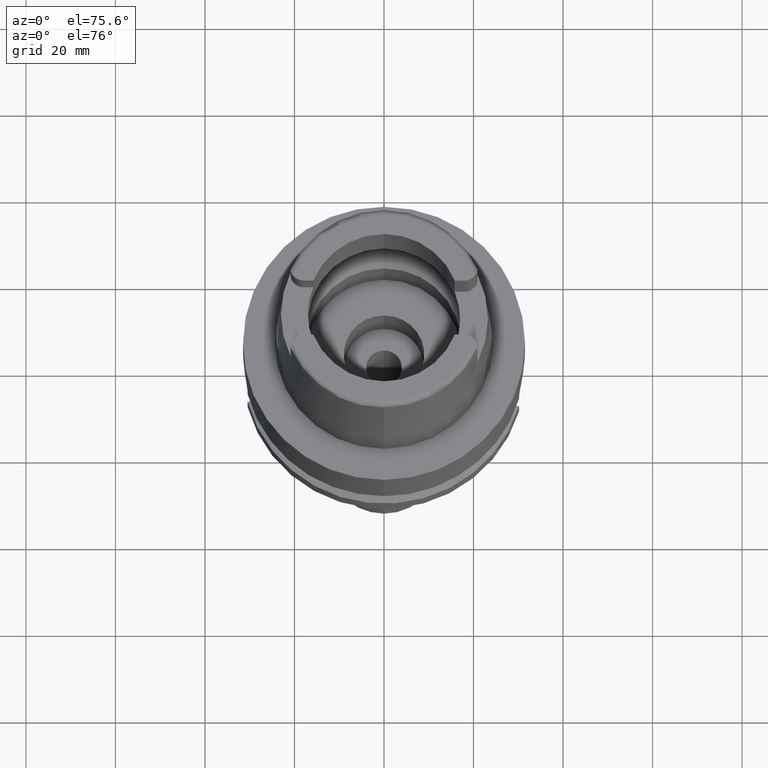
[diagram: clean part render]
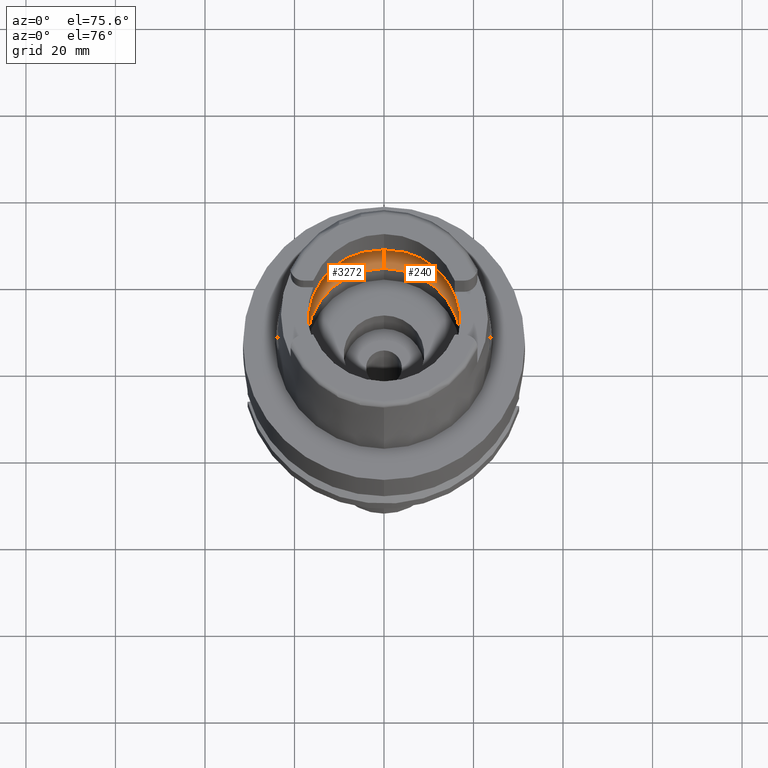
[diagram: same view with one multi-face feature highlighted, each face labeled with its STEP entity id]
A machine part, auxiliary view. The highlighted faces form ONE feature: a constant-radius fillet chain: 2 tangent blend faces with common blend radius 8 mm. The faces share edges in the B-rep.
Their STEP definitions:
[1] entity #240 (Torus):
#93 = CARTESIAN_POINT ( 'NONE',  ( 0.0000000000000000000, 12.00000000000000000, 6.186348233825000875 ) ) ;
#112 = CARTESIAN_POINT ( 'NONE',  ( 19.92547020324161622, 1.335027099705185627, 5.495682146681671654 ) ) ;
#174 = CARTESIAN_POINT ( 'NONE',  ( 19.91819973341328520, 1.528786876979105092, 5.574825955112730824 ) ) ;
#198 = VERTEX_POINT ( 'NONE', #3515 ) ;
#240 = ADVANCED_FACE ( 'NONE', ( #737 ), #5318, .F. ) ;
#241 = DIRECTION ( 'NONE',  ( 0.0000000000000000000, 1.000000000000000000, 0.0000000000000000000 ) ) ;
#401 = ORIENTED_EDGE ( 'NONE', *, *, #6070, .F. ) ;
#518 = AXIS2_PLACEMENT_3D ( 'NONE', #1895, #4679, #2704 ) ;
#542 = CARTESIAN_POINT ( 'NONE',  ( 19.94501428475999916, 0.0000000000000000000, 5.250000000000000000 ) ) ;
#608 = CARTESIAN_POINT ( 'NONE',  ( 0.0000000000000000000, 17.25000000000000000, 0.1500000000000999700 ) ) ;
#737 = FACE_OUTER_BOUND ( 'NONE', #6106, .T. ) ;
#783 = ORIENTED_EDGE ( 'NONE', *, *, #2593, .F. ) ;
#796 = CARTESIAN_POINT ( 'NONE',  ( 19.92705981527248937, -1.286926606873724177, 5.477698152406411225 ) ) ;
#813 = ORIENTED_EDGE ( 'NONE', *, *, #1099, .T. ) ;
#827 = VERTEX_POINT ( 'NONE', #3817 ) ;
#971 = EDGE_CURVE ( 'NONE', #3865, #827, #3005, .T. ) ;
#1005 = AXIS2_PLACEMENT_3D ( 'NONE', #3446, #2421, #2027 ) ;
#1011 = CARTESIAN_POINT ( 'NONE',  ( 19.92391571847977616, 1.379818936262250162, 5.513021260670475598 ) ) ;
#1099 = EDGE_CURVE ( 'NONE', #6050, #1272, #1915, .T. ) ;
#1205 = DIRECTION ( 'NONE',  ( 0.0000000000000000000, 0.0000000000000000000, 1.000000000000000000 ) ) ;
#1241 = CARTESIAN_POINT ( 'NONE',  ( 19.94501428475999916, 0.0000000000000000000, 5.250000000000000000 ) ) ;
#1271 = CARTESIAN_POINT ( 'NONE',  ( 0.0000000000000000000, 0.0000000000000000000, 6.186348233825000875 ) ) ;
#1272 = VERTEX_POINT ( 'NONE', #3110 ) ;
#1363 = CARTESIAN_POINT ( 'NONE',  ( 19.93292500493674524, -1.081634238850528451, 5.408973163817647034 ) ) ;
#1481 = CARTESIAN_POINT ( 'NONE',  ( 19.84575864665999845, 2.479085262491000030, 6.186348233825000875 ) ) ;
#1493 = DIRECTION ( 'NONE',  ( 0.0000000000000000000, -0.6562500000000006661, -0.7545435292281016393 ) ) ;
#1511 = CARTESIAN_POINT ( 'NONE',  ( 19.90654459260023046, 1.770006697072543655, 5.691880654306274323 ) ) ;
#1536 = B_SPLINE_CURVE_WITH_KNOTS ( 'NONE', 3,
 ( #1481, #3863, #2434, #5747, #1511, #4282, #174, #2040, #1011, #5781, #2869, #112, #2901, #5349, #542 ),
 .UNSPECIFIED., .F., .F.,
 ( 4, 2, 2, 1, 1, 1, 2, 2, 4 ),
 ( 0.0000000000000000000, 0.2499999999999997780, 0.3749999999999998890, 0.4374999999999997780, 0.4687499999999997224, 0.4843749999999998335, 0.4921874999999997224, 0.4999999999999996669, 1.000000000000000000 ),
 .UNSPECIFIED. ) ;
#1585 = CARTESIAN_POINT ( 'NONE',  ( 0.0000000000000000000, 20.00000000000000000, 6.186348233825000875 ) ) ;
#1710 = CARTESIAN_POINT ( 'NONE',  ( 19.94501428476000271, -0.2480012822880987844, 5.249999999999999112 ) ) ;
#1739 = CARTESIAN_POINT ( 'NONE',  ( 19.90996060949646207, -1.795819319521763990, 5.670329520825307057 ) ) ;
#1825 = CARTESIAN_POINT ( 'NONE',  ( 19.93096049696546856, -1.157939335591919860, 5.432578789541300246 ) ) ;
#1895 = CARTESIAN_POINT ( 'NONE',  ( 0.0000000000000000000, 0.0000000000000000000, 6.186348233825000875 ) ) ;
#1915 = CIRCLE ( 'NONE', #3985, 7.999999999999992895 ) ;
#1929 = DIRECTION ( 'NONE',  ( -1.000000000000000000, 0.0000000000000000000, 0.0000000000000000000 ) ) ;
#2027 = DIRECTION ( 'NONE',  ( 0.9922879323327794543, -0.1239542631244973381, 0.0000000000000000000 ) ) ;
#2040 = CARTESIAN_POINT ( 'NONE',  ( 19.92208506923287459, 1.430037391292729776, 5.533134286467971563 ) ) ;
#2197 = CARTESIAN_POINT ( 'NONE',  ( 19.92607283891191727, -1.317061137141596561, 5.488890315884850324 ) ) ;
#2313 = CARTESIAN_POINT ( 'NONE',  ( 19.94340238078356720, -0.4850176595367738930, 5.274610361541468784 ) ) ;
#2385 = CARTESIAN_POINT ( 'NONE',  ( 19.94501428475999916, 0.0000000000000000000, 5.250000000000000000 ) ) ;
#2421 = DIRECTION ( 'NONE',  ( 0.0000000000000000000, 0.0000000000000000000, -1.000000000000000000 ) ) ;
#2434 = CARTESIAN_POINT ( 'NONE',  ( 19.88058969236887918, 2.158413152842841853, 5.925203484518755559 ) ) ;
#2460 = VERTEX_POINT ( 'NONE', #2385 ) ;
#2524 = ORIENTED_EDGE ( 'NONE', *, *, #971, .F. ) ;
#2593 = EDGE_CURVE ( 'NONE', #2840, #3865, #5547, .T. ) ;
#2671 = ORIENTED_EDGE ( 'NONE', *, *, #3216, .F. ) ;
#2693 = CARTESIAN_POINT ( 'NONE',  ( 19.93655178888372248, -0.9261198900591437466, 5.364559530321087344 ) ) ;
#2704 = DIRECTION ( 'NONE',  ( 0.0000000000000000000, 1.000000000000000000, 0.0000000000000000000 ) ) ;
#2731 = CIRCLE ( 'NONE', #5311, 17.25000000000000000 ) ;
#2753 = CARTESIAN_POINT ( 'NONE',  ( 19.84575864665999845, -2.479085262491000030, 6.186348233825000875 ) ) ;
#2780 = CARTESIAN_POINT ( 'NONE',  ( 19.92840411800285594, -1.244366584479167814, 5.462313247185328180 ) ) ;
#2840 = VERTEX_POINT ( 'NONE', #608 ) ;
#2869 = CARTESIAN_POINT ( 'NONE',  ( 19.92517798419736508, 1.343609062691619505, 5.498960846759645804 ) ) ;
#2901 = CARTESIAN_POINT ( 'NONE',  ( 19.93856675271269907, 0.9459631445366759595, 5.348221889603004264 ) ) ;
#2908 = CARTESIAN_POINT ( 'NONE',  ( 0.0000000000000000000, 0.0000000000000000000, 0.1500000000000999700 ) ) ;
#3005 = CIRCLE ( 'NONE', #518, 20.00000000000000000 ) ;
#3110 = CARTESIAN_POINT ( 'NONE',  ( 0.0000000000000000000, -20.00000000000000000, 6.186348233825000875 ) ) ;
#3216 = EDGE_CURVE ( 'NONE', #198, #1272, #3674, .T. ) ;
#3318 = DIRECTION ( 'NONE',  ( 1.000000000000000000, 0.0000000000000000000, 0.0000000000000000000 ) ) ;
#3367 = EDGE_CURVE ( 'NONE', #2460, #198, #3509, .T. ) ;
#3446 = CARTESIAN_POINT ( 'NONE',  ( 0.0000000000000000000, 0.0000000000000000000, 6.186348233825000875 ) ) ;
#3509 = B_SPLINE_CURVE_WITH_KNOTS ( 'NONE', 3,
 ( #1241, #1710, #2313, #5068, #2693, #1363, #1825, #2780, #796, #6005, #2197, #4544, #1739, #5567, #2753 ),
 .UNSPECIFIED., .F., .F.,
 ( 4, 2, 2, 1, 1, 1, 2, 2, 4 ),
 ( 0.0000000000000000000, 0.2499999999999987788, 0.3749999999999982792, 0.4374999999999980571, 0.4687499999999978906, 0.4843749999999975020, 0.4921874999999975575, 0.4999999999999975575, 1.000000000000000000 ),
 .UNSPECIFIED. ) ;
#3515 = CARTESIAN_POINT ( 'NONE',  ( 19.84575864665999845, -2.479085262491000030, 6.186348233825000875 ) ) ;
#3641 = ORIENTED_EDGE ( 'NONE', *, *, #5635, .F. ) ;
#3674 = CIRCLE ( 'NONE', #1005, 20.00000000000001421 ) ;
#3817 = CARTESIAN_POINT ( 'NONE',  ( 19.84575864665999845, 2.479085262491000030, 6.186348233825000875 ) ) ;
#3838 = DIRECTION ( 'NONE',  ( 0.0000000000000000000, -1.000000000000000000, 0.0000000000000000000 ) ) ;
#3863 = CARTESIAN_POINT ( 'NONE',  ( 19.86453973035714426, 2.328737527431136822, 6.053878089965434306 ) ) ;
#3865 = VERTEX_POINT ( 'NONE', #1585 ) ;
#3985 = AXIS2_PLACEMENT_3D ( 'NONE', #4738, #1929, #1493 ) ;
#4282 = CARTESIAN_POINT ( 'NONE',  ( 19.91448538158094550, 1.610508053762594205, 5.612924102263945336 ) ) ;
#4326 = DIRECTION ( 'NONE',  ( 0.0000000000000000000, 0.0000000000000000000, 1.000000000000000000 ) ) ;
#4544 = CARTESIAN_POINT ( 'NONE',  ( 19.92591691872320681, -1.321755966737424792, 5.490652197696729075 ) ) ;
#4679 = DIRECTION ( 'NONE',  ( 0.0000000000000000000, 0.0000000000000000000, -1.000000000000000000 ) ) ;
#4713 = AXIS2_PLACEMENT_3D ( 'NONE', #1271, #1205, #241 ) ;
#4738 = CARTESIAN_POINT ( 'NONE',  ( 0.0000000000000000000, -12.00000000000000000, 6.186348233825000875 ) ) ;
#4855 = AXIS2_PLACEMENT_3D ( 'NONE', #93, #3318, #5196 ) ;
#5068 = CARTESIAN_POINT ( 'NONE',  ( 19.93856666885426776, -0.8185636124059638696, 5.338679045133562617 ) ) ;
#5196 = DIRECTION ( 'NONE',  ( 0.0000000000000000000, 0.6562500000000006661, -0.7545435292281016393 ) ) ;
#5254 = CARTESIAN_POINT ( 'NONE',  ( 0.0000000000000000000, -17.25000000000000000, 0.1500000000000999700 ) ) ;
#5311 = AXIS2_PLACEMENT_3D ( 'NONE', #2908, #4326, #3838 ) ;
#5318 = TOROIDAL_SURFACE ( 'NONE', #4713, 12.00000000000000000, 8.000000000000000000 ) ;
#5349 = CARTESIAN_POINT ( 'NONE',  ( 19.94501428475999560, 0.4960402853743198781, 5.249999999999998224 ) ) ;
#5547 = CIRCLE ( 'NONE', #4855, 7.999999999999992895 ) ;
#5567 = CARTESIAN_POINT ( 'NONE',  ( 19.88332301270218849, -2.178372191595286722, 5.921392438207989883 ) ) ;
#5629 = ORIENTED_EDGE ( 'NONE', *, *, #3367, .F. ) ;
#5635 = EDGE_CURVE ( 'NONE', #6050, #2840, #2731, .T. ) ;
#5747 = CARTESIAN_POINT ( 'NONE',  ( 19.90056795285839186, 1.871072381427642872, 5.748193827892897012 ) ) ;
#5781 = CARTESIAN_POINT ( 'NONE',  ( 19.92467627844355960, 1.358116918539620022, 5.504563131531990727 ) ) ;
#6005 = CARTESIAN_POINT ( 'NONE',  ( 19.92646951840612246, -1.305026090026948804, 5.484399317726082579 ) ) ;
#6050 = VERTEX_POINT ( 'NONE', #5254 ) ;
#6070 = EDGE_CURVE ( 'NONE', #827, #2460, #1536, .T. ) ;
#6106 = EDGE_LOOP ( 'NONE', ( #401, #2524, #783, #3641, #813, #2671, #5629 ) ) ;
[2] entity #3272 (Torus):
#44 = CARTESIAN_POINT ( 'NONE',  ( -19.92208494194046509, -1.430041077684033990, 5.533135808937241329 ) ) ;
#48 = EDGE_LOOP ( 'NONE', ( #4804, #4979, #3684, #4374, #5106, #1882, #4417 ) ) ;
#93 = CARTESIAN_POINT ( 'NONE',  ( 0.0000000000000000000, 12.00000000000000000, 6.186348233825000875 ) ) ;
#178 = CIRCLE ( 'NONE', #1860, 20.00000000000000000 ) ;
#181 = CARTESIAN_POINT ( 'NONE',  ( -19.88332310116147283, 2.178371483505385786, 5.921391814315846602 ) ) ;
#237 = CARTESIAN_POINT ( 'NONE',  ( -19.94340239125193293, 0.4850157974226460000, 5.274610163457148282 ) ) ;
#244 = DIRECTION ( 'NONE',  ( 0.0000000000000000000, 0.0000000000000000000, 1.000000000000000000 ) ) ;
#351 = CIRCLE ( 'NONE', #4406, 20.00000000000001421 ) ;
#608 = CARTESIAN_POINT ( 'NONE',  ( 0.0000000000000000000, 17.25000000000000000, 0.1500000000000999700 ) ) ;
#666 = CARTESIAN_POINT ( 'NONE',  ( -19.94501428475999916, 0.0000000000000000000, 5.250000000000000000 ) ) ;
#681 = EDGE_CURVE ( 'NONE', #4373, #910, #2530, .T. ) ;
#699 = CARTESIAN_POINT ( 'NONE',  ( -19.93292508344945801, 1.081630659659294169, 5.408972087979956989 ) ) ;
#706 = TOROIDAL_SURFACE ( 'NONE', #1708, 12.00000000000000000, 8.000000000000000000 ) ;
#910 = VERTEX_POINT ( 'NONE', #2236 ) ;
#980 = DIRECTION ( 'NONE',  ( 0.0000000000000000000, 0.0000000000000000000, -1.000000000000000000 ) ) ;
#1008 = DIRECTION ( 'NONE',  ( -0.9922879323327794543, 0.1239542631244973381, 0.0000000000000000000 ) ) ;
#1084 = CARTESIAN_POINT ( 'NONE',  ( -19.94501428475999916, 0.0000000000000000000, 5.250000000000000000 ) ) ;
#1099 = EDGE_CURVE ( 'NONE', #6050, #1272, #1915, .T. ) ;
#1272 = VERTEX_POINT ( 'NONE', #3110 ) ;
#1493 = DIRECTION ( 'NONE',  ( 0.0000000000000000000, -0.6562500000000006661, -0.7545435292281016393 ) ) ;
#1544 = CARTESIAN_POINT ( 'NONE',  ( -19.94501428475999560, -0.4960423020627297008, 5.249999999999995559 ) ) ;
#1549 = DIRECTION ( 'NONE',  ( 0.0000000000000000000, 0.0000000000000000000, 1.000000000000000000 ) ) ;
#1585 = CARTESIAN_POINT ( 'NONE',  ( 0.0000000000000000000, 20.00000000000000000, 6.186348233825000875 ) ) ;
#1605 = CARTESIAN_POINT ( 'NONE',  ( -19.90654447560747542, -1.770008974173177263, 5.691881888190377659 ) ) ;
#1708 = AXIS2_PLACEMENT_3D ( 'NONE', #4024, #244, #2140 ) ;
#1860 = AXIS2_PLACEMENT_3D ( 'NONE', #4412, #980, #5718 ) ;
#1882 = ORIENTED_EDGE ( 'NONE', *, *, #2875, .F. ) ;
#1915 = CIRCLE ( 'NONE', #3985, 7.999999999999992895 ) ;
#1929 = DIRECTION ( 'NONE',  ( -1.000000000000000000, 0.0000000000000000000, 0.0000000000000000000 ) ) ;
#2015 = CARTESIAN_POINT ( 'NONE',  ( -19.92646963884338263, 1.305022040076338818, 5.484397814373272340 ) ) ;
#2060 = CARTESIAN_POINT ( 'NONE',  ( -19.84575864665999845, -2.479085262491000030, 6.186348233825000875 ) ) ;
#2069 = CARTESIAN_POINT ( 'NONE',  ( -19.88058961472209774, -2.158414018199903417, 5.925204145833316893 ) ) ;
#2092 = CIRCLE ( 'NONE', #2877, 17.25000000000000000 ) ;
#2132 = CARTESIAN_POINT ( 'NONE',  ( -19.93655184384261858, 0.9261166967963114782, 5.364558725656097593 ) ) ;
#2140 = DIRECTION ( 'NONE',  ( 0.0000000000000000000, 1.000000000000000000, 0.0000000000000000000 ) ) ;
#2236 = CARTESIAN_POINT ( 'NONE',  ( -19.94501428475999916, 0.0000000000000000000, 5.250000000000000000 ) ) ;
#2473 = CARTESIAN_POINT ( 'NONE',  ( 0.0000000000000000000, 0.0000000000000000000, 0.1500000000000999700 ) ) ;
#2530 = B_SPLINE_CURVE_WITH_KNOTS ( 'NONE', 3,
 ( #2900, #3026, #2069, #4347, #1605, #4411, #5780, #44, #3956, #5717, #2994, #4906, #2964, #1544, #666 ),
 .UNSPECIFIED., .F., .F.,
 ( 4, 2, 2, 1, 1, 1, 2, 2, 4 ),
 ( 0.0000000000000000000, 0.2500000000000051070, 0.3750000000000077716, 0.4375000000000091038, 0.4687500000000098255, 0.4843750000000101030, 0.4921875000000099920, 0.5000000000000098810, 1.000000000000000000 ),
 .UNSPECIFIED. ) ;
#2534 = CARTESIAN_POINT ( 'NONE',  ( -19.93856671072771292, 0.8185607198028845843, 5.338678409714962214 ) ) ;
#2593 = EDGE_CURVE ( 'NONE', #2840, #3865, #5547, .T. ) ;
#2596 = CARTESIAN_POINT ( 'NONE',  ( -19.92705993187612989, 1.286922590644232978, 5.477696685208107930 ) ) ;
#2835 = EDGE_CURVE ( 'NONE', #2840, #6050, #2092, .T. ) ;
#2840 = VERTEX_POINT ( 'NONE', #608 ) ;
#2875 = EDGE_CURVE ( 'NONE', #910, #5258, #5839, .T. ) ;
#2877 = AXIS2_PLACEMENT_3D ( 'NONE', #2473, #1549, #4478 ) ;
#2900 = CARTESIAN_POINT ( 'NONE',  ( -19.84575864665999845, -2.479085262491000030, 6.186348233825000875 ) ) ;
#2964 = CARTESIAN_POINT ( 'NONE',  ( -19.93856671042052398, -0.9459665778997381480, 5.348222674928019060 ) ) ;
#2994 = CARTESIAN_POINT ( 'NONE',  ( -19.92517785718085577, -1.343613127942956842, 5.498962406970089312 ) ) ;
#3026 = CARTESIAN_POINT ( 'NONE',  ( -19.86453968564131500, -2.328737885376345407, 6.053878405347992597 ) ) ;
#3096 = CARTESIAN_POINT ( 'NONE',  ( -19.94501428476000271, 0.2480002814738951344, 5.249999999999999112 ) ) ;
#3110 = CARTESIAN_POINT ( 'NONE',  ( 0.0000000000000000000, -20.00000000000000000, 6.186348233825000875 ) ) ;
#3272 = ADVANCED_FACE ( 'NONE', ( #3910 ), #706, .F. ) ;
#3318 = DIRECTION ( 'NONE',  ( 1.000000000000000000, 0.0000000000000000000, 0.0000000000000000000 ) ) ;
#3684 = ORIENTED_EDGE ( 'NONE', *, *, #2835, .F. ) ;
#3865 = VERTEX_POINT ( 'NONE', #1585 ) ;
#3902 = CARTESIAN_POINT ( 'NONE',  ( -19.84575864665999845, 2.479085262489999941, 6.186348233825000875 ) ) ;
#3910 = FACE_OUTER_BOUND ( 'NONE', #48, .T. ) ;
#3956 = CARTESIAN_POINT ( 'NONE',  ( -19.92391559123418787, -1.379822842001579009, 5.513022806674898746 ) ) ;
#3985 = AXIS2_PLACEMENT_3D ( 'NONE', #4738, #1929, #1493 ) ;
#4024 = CARTESIAN_POINT ( 'NONE',  ( 0.0000000000000000000, 0.0000000000000000000, 6.186348233825000875 ) ) ;
#4347 = CARTESIAN_POINT ( 'NONE',  ( -19.90056784349247820, -1.871074272730828048, 5.748194928871746434 ) ) ;
#4353 = CARTESIAN_POINT ( 'NONE',  ( -19.92840422587602944, 1.244362650384072122, 5.462311864171463860 ) ) ;
#4373 = VERTEX_POINT ( 'NONE', #2060 ) ;
#4374 = ORIENTED_EDGE ( 'NONE', *, *, #2593, .T. ) ;
#4406 = AXIS2_PLACEMENT_3D ( 'NONE', #5808, #5744, #1008 ) ;
#4411 = CARTESIAN_POINT ( 'NONE',  ( -19.91448525756728927, -1.610510976265786987, 5.612925495665686881 ) ) ;
#4412 = CARTESIAN_POINT ( 'NONE',  ( 0.0000000000000000000, 0.0000000000000000000, 6.186348233825000875 ) ) ;
#4417 = ORIENTED_EDGE ( 'NONE', *, *, #681, .F. ) ;
#4421 = CARTESIAN_POINT ( 'NONE',  ( -19.93096058823649130, 1.157935579649966629, 5.432577573767241041 ) ) ;
#4478 = DIRECTION ( 'NONE',  ( 0.0000000000000000000, 1.000000000000000000, 0.0000000000000000000 ) ) ;
#4546 = CARTESIAN_POINT ( 'NONE',  ( -19.84575864665999845, 2.479085262489999941, 6.186348233825000875 ) ) ;
#4738 = CARTESIAN_POINT ( 'NONE',  ( 0.0000000000000000000, -12.00000000000000000, 6.186348233825000875 ) ) ;
#4804 = ORIENTED_EDGE ( 'NONE', *, *, #6054, .F. ) ;
#4820 = EDGE_CURVE ( 'NONE', #5258, #3865, #351, .T. ) ;
#4855 = AXIS2_PLACEMENT_3D ( 'NONE', #93, #3318, #5196 ) ;
#4906 = CARTESIAN_POINT ( 'NONE',  ( -19.92547007504345302, -1.335031240339097369, 5.495683724100088874 ) ) ;
#4974 = CARTESIAN_POINT ( 'NONE',  ( -19.92591704426989452, 1.321751840890049490, 5.490650643677390974 ) ) ;
#4979 = ORIENTED_EDGE ( 'NONE', *, *, #1099, .F. ) ;
#5106 = ORIENTED_EDGE ( 'NONE', *, *, #4820, .F. ) ;
#5196 = DIRECTION ( 'NONE',  ( 0.0000000000000000000, 0.6562500000000006661, -0.7545435292281016393 ) ) ;
#5254 = CARTESIAN_POINT ( 'NONE',  ( 0.0000000000000000000, -17.25000000000000000, 0.1500000000000999700 ) ) ;
#5258 = VERTEX_POINT ( 'NONE', #4546 ) ;
#5386 = CARTESIAN_POINT ( 'NONE',  ( -19.90996073982917380, 1.795817278995830657, 5.670328124222732136 ) ) ;
#5420 = CARTESIAN_POINT ( 'NONE',  ( -19.92607296192538513, 1.317057065037986030, 5.488888788417265907 ) ) ;
#5547 = CIRCLE ( 'NONE', #4855, 7.999999999999992895 ) ;
#5717 = CARTESIAN_POINT ( 'NONE',  ( -19.92467615132159864, -1.358120919786871328, 5.504564686247708671 ) ) ;
#5718 = DIRECTION ( 'NONE',  ( 0.0000000000000000000, -1.000000000000000000, 0.0000000000000000000 ) ) ;
#5744 = DIRECTION ( 'NONE',  ( 0.0000000000000000000, 0.0000000000000000000, -1.000000000000000000 ) ) ;
#5780 = CARTESIAN_POINT ( 'NONE',  ( -19.91819960699401193, -1.528790138807751164, 5.574827418276589341 ) ) ;
#5808 = CARTESIAN_POINT ( 'NONE',  ( 0.0000000000000000000, 0.0000000000000000000, 6.186348233825000875 ) ) ;
#5839 = B_SPLINE_CURVE_WITH_KNOTS ( 'NONE', 3,
 ( #1084, #3096, #237, #2534, #2132, #699, #4421, #4353, #2596, #2015, #5420, #4974, #5386, #181, #3902 ),
 .UNSPECIFIED., .F., .F.,
 ( 4, 2, 2, 1, 1, 1, 2, 2, 4 ),
 ( 0.0000000000000000000, 0.2499999999999956146, 0.3749999999999934497, 0.4374999999999923395, 0.4687499999999917288, 0.4843749999999914513, 0.4921874999999914513, 0.4999999999999915623, 1.000000000000000000 ),
 .UNSPECIFIED. ) ;
#6050 = VERTEX_POINT ( 'NONE', #5254 ) ;
#6054 = EDGE_CURVE ( 'NONE', #1272, #4373, #178, .T. ) ;